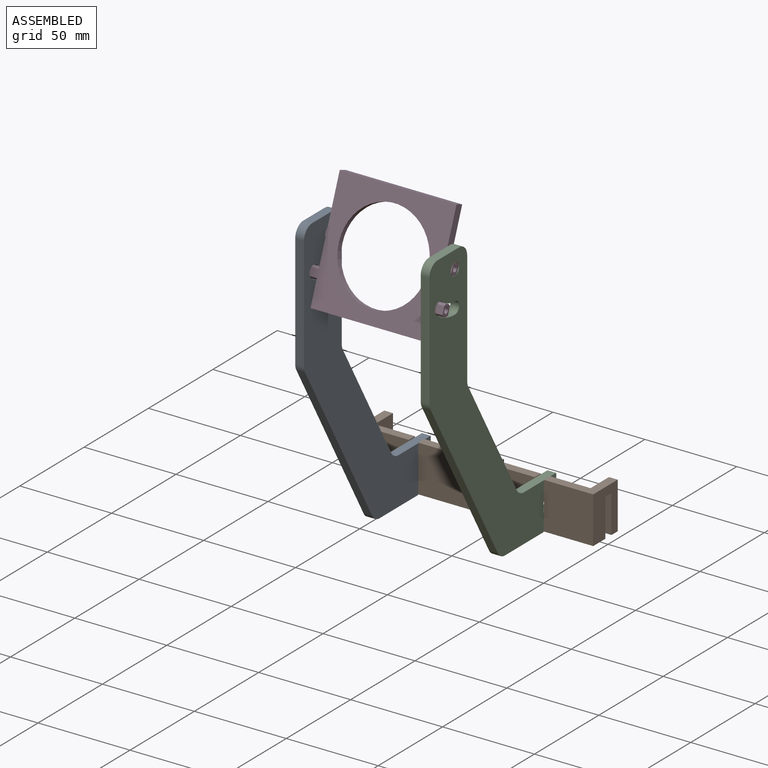
[diagram: assembled view]
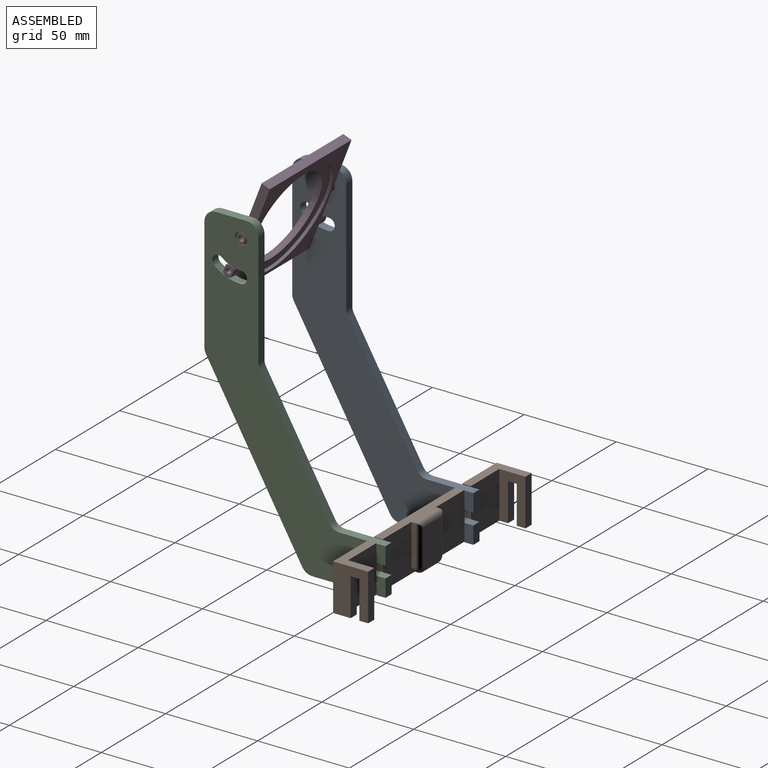
[diagram: assembled view, second angle]
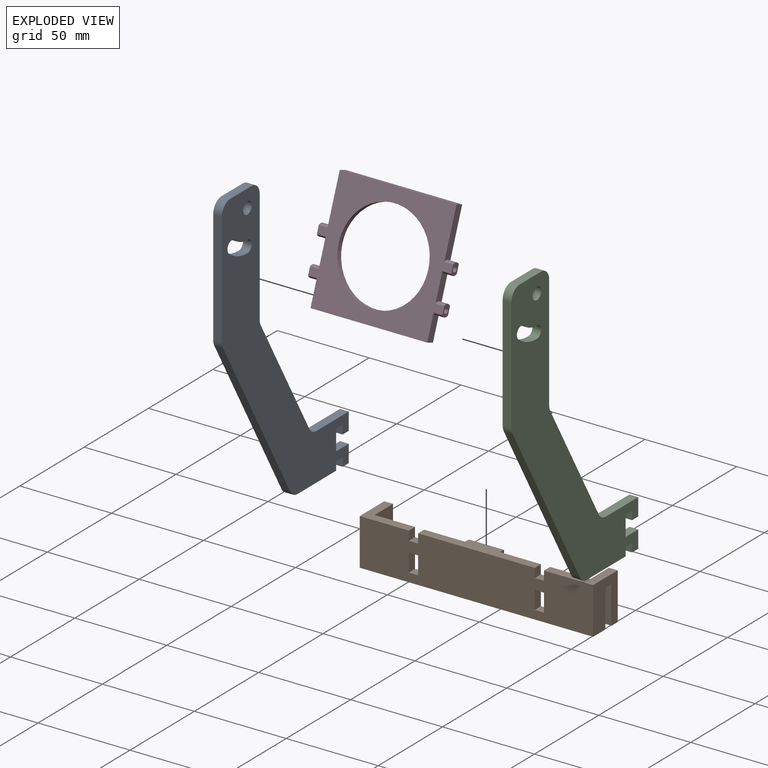
[diagram: exploded view]
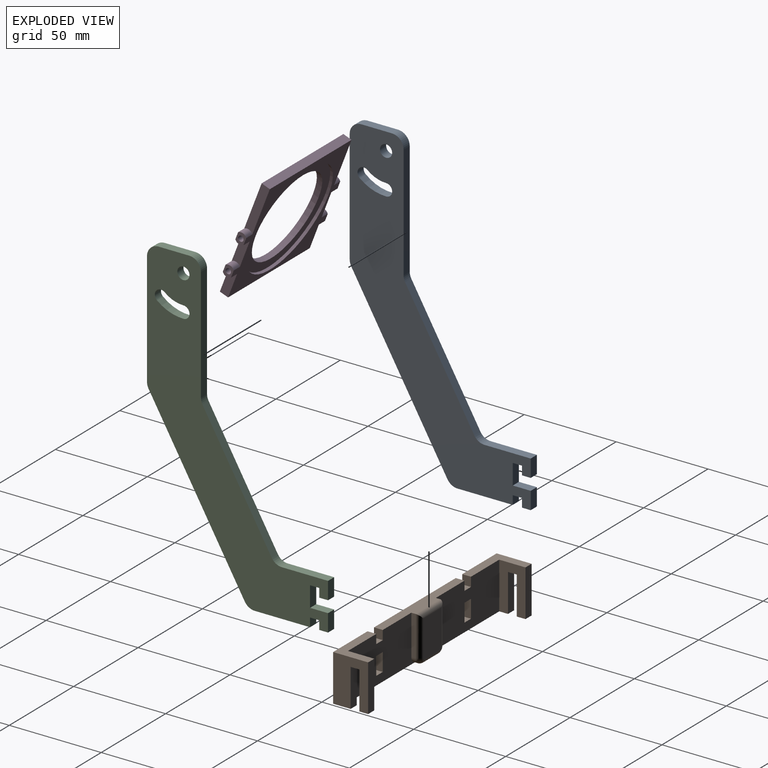
[diagram: exploded view, second angle]
ASSEMBLY  parts=4 mates=2
PART A: 31 faces, bbox 4.8x98.5x165.1 mm
  f0: plane 11.11x4.76mm, normal (0,1,0), area 52.9mm2, adj f2,f3,f23,f28
  f1: plane 30.05x4.76mm, normal (0,0,-1), area 143.1mm2, adj f2,f3,f15,f16
  f2: plane 165.1x98.49mm, normal (1,0,0), area 5104.8mm2, adj f0,f1,f4,f5,f6,f7,f8,f9
  f3: plane 165.1x98.49mm, normal (-1,0,0), area 5104.8mm2, adj f0,f1,f4,f5,f6,f7,f8,f9
  f4: plane 25.16x4.76mm, normal (0,0,1), area 119.8mm2, adj f2,f3,f5,f24
  f5: cylinder r=6.35mm len=5.5mm, axis (-1,0,0), area 31.7mm2, adj f2,f3,f4,f6
  f6: plane 65.2x37.64mm, normal (0,0.87,0.5), area 358.6mm2, adj f2,f3,f5,f7
  f7: cylinder r=6.35mm len=4.76mm, axis (-1,0,0), area 15.8mm2, adj f2,f3,f6,f8
  f8: plane 61.8x4.76mm, normal (0,1,0), area 294.3mm2, adj f2,f3,f7,f9
  f9: cylinder r=6.35mm len=6.35mm, axis (-1,0,0), area 47.5mm2, adj f2,f3,f8,f10
  f10: plane 16.63x4.76mm, normal (0,0,1), area 79.2mm2, adj f2,f3,f9,f11
  f11: cylinder r=6.35mm len=6.35mm, axis (-1,0,0), area 47.5mm2, adj f2,f3,f10,f12
  f12: plane 61.8x4.76mm, normal (0,-1,0), area 294.3mm2, adj f2,f3,f11,f13
  f13: cylinder r=6.35mm len=4.76mm, axis (-1,0,0), area 15.8mm2, adj f2,f3,f12,f14
  f14: plane 90.6x52.31mm, normal (0,-0.87,-0.5), area 498.2mm2, adj f2,f3,f13,f15
  f15: cylinder r=6.35mm len=5.5mm, axis (-1,0,0), area 31.7mm2, adj f1,f2,f3,f14
  f16: plane 4.76x4.76mm, normal (0,1,0), area 22.7mm2, adj f1,f2,f3,f27
  f17: cylinder r=22.35mm len=14.37mm, axis (-1,0,0), area 74.3mm2, adj f2,f3,f18,f20
  f18: cylinder r=3.3mm len=5.83mm, axis (-1,0,0), area 49.4mm2, adj f2,f3,f17,f19
  f19: cylinder r=15.75mm len=10.12mm, axis (-1,0,0), area 52.4mm2, adj f2,f3,f18,f20
  f20: cylinder r=3.3mm len=6.6mm, axis (-1,0,0), area 49.4mm2, adj f2,f3,f17,f19
  f21: cylinder r=3.3mm len=6.6mm, axis (-1,0,0), area 98.8mm2, adj f2,f3
  f22: plane 4.76x4.76mm, normal (0,-1,0), area 22.7mm2, adj f2,f3,f23,f25
  f23: plane 5.02x4.76mm, normal (0,0,-1), area 23.9mm2, adj f0,f2,f3,f22
  f24: plane 9.53x4.76mm, normal (0,1,0), area 45.4mm2, adj f2,f3,f4,f25
  f25: plane 4.76x4.76mm, normal (0,0,-1), area 22.7mm2, adj f2,f3,f22,f24
  f26: plane 4.76x4.76mm, normal (0,-1,0), area 22.7mm2, adj f2,f3,f27,f30
  f27: plane 5.02x4.76mm, normal (0,0,-1), area 23.9mm2, adj f2,f3,f16,f26
  f28: plane 9.78x4.76mm, normal (0,0,1), area 46.6mm2, adj f0,f2,f3,f29
  f29: plane 9.53x4.76mm, normal (0,1,0), area 45.4mm2, adj f2,f3,f28,f30
  f30: plane 4.76x4.76mm, normal (0,0,-1), area 22.7mm2, adj f2,f3,f26,f29
PART B: 46 faces, bbox 127x19.1x25.4 mm
  f0: plane 52.81x25.4mm, normal (0,-1,0), area 1178.6mm2, adj f3,f5,f7,f14,f23,f24,f32,f33
  f1: plane 52.81x25.4mm, normal (0,-1,0), area 1178.6mm2, adj f2,f3,f7,f20,f21,f22,f35,f36
  f2: plane 26.73x19.05mm, normal (0,0,1), area 195.4mm2, adj f1,f4,f6,f19,f20,f41
  f3: plane 63.5x6.99mm, normal (0,0,1), area 344.8mm2, adj f0,f1,f4,f21,f24,f29,f34,f39
  f4: plane 127x25.4mm, normal (0,1,0), area 3077.4mm2, adj f2,f3,f5,f6,f7,f8,f32,f33
  f5: plane 26.73x19.05mm, normal (0,0,1), area 195.4mm2, adj f0,f4,f8,f10,f14,f32
  f6: plane 25.4x19.05mm, normal (-1,0,0), area 385.6mm2, adj f2,f4,f7,f15,f16,f17,f18,f19
  f7: plane 127x9.53mm, normal (0,0,-1), area 676.5mm2, adj f0,f1,f4,f6,f8,f9,f14,f15
  f8: plane 25.4x19.05mm, normal (1,0,0), area 385.6mm2, adj f4,f5,f7,f9,f10,f11,f12,f13
  f9: plane 20.64x4.76mm, normal (0,-1,0), area 98.3mm2, adj f7,f8,f13,f14
  f10: plane 25.4x4.76mm, normal (0,-1,0), area 121mm2, adj f5,f8,f11,f14
  f11: plane 4.76x4.76mm, normal (0,0,-1), area 22.7mm2, adj f8,f10,f12,f14
  f12: plane 20.64x4.76mm, normal (0,1,0), area 98.3mm2, adj f8,f11,f13,f14
  f13: plane 4.76x4.76mm, normal (0,0,-1), area 22.7mm2, adj f8,f9,f12,f14
  f14: plane 25.4x14.29mm, normal (-1,0,0), area 264.6mm2, adj f0,f5,f7,f9,f10,f11,f12,f13
  f15: plane 20.64x4.76mm, normal (0,-1,0), area 98.3mm2, adj f6,f7,f16,f20
  f16: plane 4.76x4.76mm, normal (0,0,-1), area 22.7mm2, adj f6,f15,f17,f20
  f17: plane 20.64x4.76mm, normal (0,1,0), area 98.3mm2, adj f6,f16,f18,f20
  f18: plane 4.76x4.76mm, normal (0,0,-1), area 22.7mm2, adj f6,f17,f19,f20
  f19: plane 25.4x4.76mm, normal (0,-1,0), area 121mm2, adj f2,f6,f18,f20
  f20: plane 25.4x14.29mm, normal (1,0,0), area 264.6mm2, adj f1,f2,f7,f15,f16,f17,f18,f19
  f21: plane 21.8x2.22mm, normal (-1,0,0), area 48.4mm2, adj f1,f3,f22,f27
  f22: cylinder r=3.6mm len=3.6mm, axis (0,1,0), area 12.6mm2, adj f1,f7,f21,f26
  f23: cylinder r=3.6mm len=3.6mm, axis (0,1,0), area 12.6mm2, adj f0,f7,f24,f30
  f24: plane 21.8x2.22mm, normal (1,0,0), area 48.4mm2, adj f0,f3,f23,f31
  f25: plane 20.32x13.97mm, normal (0,-1,0), area 283.4mm2, adj f26,f27,f28,f29,f30,f31
  f26: torus R=1.06mm, axis (0,-1,0), area 16.8mm2, adj f22,f25,f27,f28
  f27: cylinder r=2.54mm len=21.8mm, axis (0,0,1), area 83.3mm2, adj f21,f25,f26,f29
  f28: cylinder r=2.54mm len=11.85mm, axis (-1,0,0), area 47.3mm2, adj f7,f25,f26,f30
  f29: cylinder r=2.54mm len=19.05mm, axis (1,0,0), area 68.6mm2, adj f3,f25,f27,f31
  f30: torus R=1.06mm, axis (0,-1,0), area 16.8mm2, adj f23,f25,f28,f31
  f31: cylinder r=2.54mm len=21.8mm, axis (0,0,-1), area 83.3mm2, adj f24,f25,f29,f30
  f32: plane 5.02x4.76mm, normal (-1,0,0), area 23.9mm2, adj f0,f4,f5,f33
  f33: plane 5.02x4.76mm, normal (0,0,1), area 23.9mm2, adj f0,f4,f32,f34
  f34: plane 5.02x4.76mm, normal (1,0,0), area 23.9mm2, adj f0,f3,f4,f33
  f35: plane 9.78x4.76mm, normal (1,0,0), area 46.6mm2, adj f1,f4,f36,f38
  f36: plane 5.02x4.76mm, normal (0,0,-1), area 23.9mm2, adj f1,f4,f35,f37
  f37: plane 9.78x4.76mm, normal (-1,0,0), area 46.6mm2, adj f1,f4,f36,f38
  f38: plane 5.02x4.76mm, normal (0,0,1), area 23.9mm2, adj f1,f4,f35,f37
  f39: plane 5.02x4.76mm, normal (-1,0,0), area 23.9mm2, adj f1,f3,f4,f40
  f40: plane 5.02x4.76mm, normal (0,0,1), area 23.9mm2, adj f1,f4,f39,f41
  f41: plane 5.02x4.76mm, normal (1,0,0), area 23.9mm2, adj f1,f2,f4,f40
  f42: plane 5.02x4.76mm, normal (0,0,1), area 23.9mm2, adj f0,f4,f43,f45
  f43: plane 9.78x4.76mm, normal (1,0,0), area 46.6mm2, adj f0,f4,f42,f44
  f44: plane 5.02x4.76mm, normal (0,0,-1), area 23.9mm2, adj f0,f4,f43,f45
  f45: plane 9.78x4.76mm, normal (-1,0,0), area 46.6mm2, adj f0,f4,f42,f44
PART C: same geometry as A
PART D: 33 faces, bbox 73x4.8x63.5 mm
  f0: cylinder r=24.38mm len=48.77mm, axis (0,-1,0), area 486.4mm2, adj f2,f32
  f1: plane 6.35x4.76mm, normal (-1,0,0), area 20mm2, adj f2,f3,f21,f22,f26
  f2: plane 73.03x63.5mm, normal (0,-1,0), area 2244.3mm2, adj f0,f1,f4,f5,f6,f7,f8,f9
  f3: plane 73.03x63.5mm, normal (0,1,0), area 1314mm2, adj f1,f4,f5,f6,f7,f8,f9,f10
  f4: plane 6.35x4.76mm, normal (1,0,0), area 20mm2, adj f2,f3,f19,f20,f30
  f5: plane 6.35x4.76mm, normal (1,0,0), area 20mm2, adj f2,f3,f17,f18,f28
  f6: plane 6.35x4.76mm, normal (-1,0,0), area 20mm2, adj f2,f3,f15,f16,f24
  f7: plane 63.5x4.76mm, normal (0,0,1), area 302.4mm2, adj f2,f3,f8,f14
  f8: plane 26.48x4.76mm, normal (1,0,0), area 122.5mm2, adj f2,f3,f7,f17
  f9: plane 14.85x4.76mm, normal (1,0,0), area 63.6mm2, adj f2,f3,f18,f19
  f10: plane 13.78x4.76mm, normal (1,0,0), area 62.1mm2, adj f2,f3,f11,f20
  f11: plane 63.5x4.76mm, normal (0,0,-1), area 302.4mm2, adj f2,f3,f10,f12
  f12: plane 13.78x4.76mm, normal (-1,0,0), area 62.1mm2, adj f2,f3,f11,f22
  f13: plane 14.85x4.76mm, normal (-1,0,0), area 63.6mm2, adj f2,f3,f15,f21
  f14: plane 26.48x4.76mm, normal (-1,0,0), area 122.5mm2, adj f2,f3,f7,f16
  f15: cylinder r=3.17mm len=4.76mm, axis (-1,0,0), area 25.6mm2, adj f2,f3,f6,f13
  f16: cylinder r=3.17mm len=4.76mm, axis (-1,0,0), area 25.6mm2, adj f2,f3,f6,f14
  f17: cylinder r=3.17mm len=4.76mm, axis (1,0,0), area 25.6mm2, adj f2,f3,f5,f8
  f18: cylinder r=3.17mm len=4.76mm, axis (1,0,0), area 25.6mm2, adj f2,f3,f5,f9
  f19: cylinder r=3.17mm len=4.76mm, axis (1,0,0), area 25.6mm2, adj f2,f3,f4,f9
  f20: cylinder r=3.17mm len=4.76mm, axis (1,0,0), area 25.6mm2, adj f2,f3,f4,f10
  f21: cylinder r=3.17mm len=4.76mm, axis (-1,0,0), area 25.6mm2, adj f1,f2,f3,f13
  f22: cylinder r=3.17mm len=4.76mm, axis (-1,0,0), area 25.6mm2, adj f1,f2,f3,f12
  f23: plane 3x3mm, normal (-1,0,0), area 7.1mm2, adj f24
  f24: cylinder r=1.5mm len=4.76mm, axis (-1,0,0), area 44.9mm2, adj f6,f23
  f25: plane 3x3mm, normal (-1,0,0), area 7.1mm2, adj f26
  f26: cylinder r=1.5mm len=4.76mm, axis (-1,0,0), area 44.9mm2, adj f1,f25
  f27: plane 3x3mm, normal (1,0,0), area 7.1mm2, adj f28
  f28: cylinder r=1.5mm len=4.76mm, axis (1,0,0), area 44.9mm2, adj f5,f27
  f29: plane 3x3mm, normal (1,0,0), area 7.1mm2, adj f30
  f30: cylinder r=1.5mm len=4.76mm, axis (1,0,0), area 44.9mm2, adj f4,f29
  f31: cylinder r=29.84mm len=59.69mm, axis (0,1,0), area 297.7mm2, adj f3,f32
  f32: plane 59.69x59.69mm, normal (0,1,0), area 930.4mm2, adj f0,f31
PLACE A t=(-144.77,28.66,-14.74)mm
PLACE B rot(axis=(0,0,1),180deg) t=(-44.88,9.74,-14.48)mm
PLACE C t=(-76.51,28.66,-14.74)mm fixed
PLACE D rot(axis=(-1,0,0),21deg) t=(-76.51,-32.86,-35.91)mm
MATE revolute C.f17 <-> D.f28  axis (1,0,0) through (-71.74,-59.29,140.84)mm
MATE fastened C.f23 <-> B.f40  axis (0,0,-1) through (-74.12,12.12,5.9)mm
